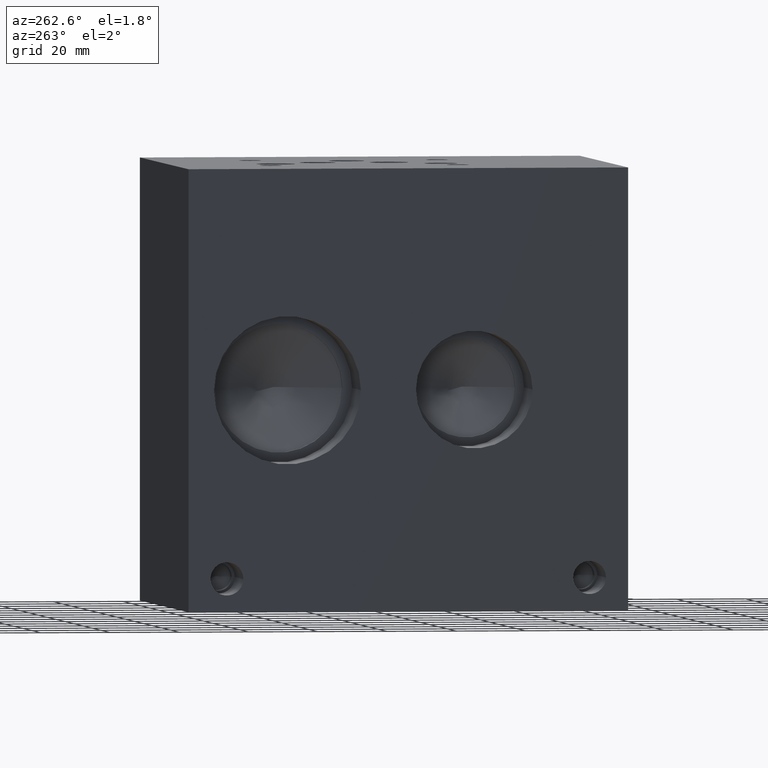
[diagram: clean part render]
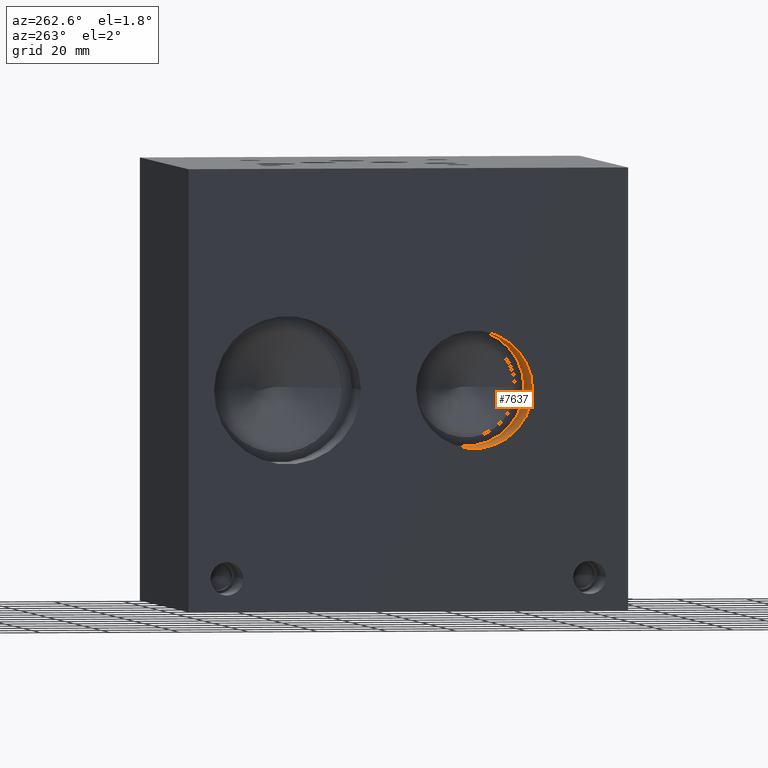
[diagram: same view with one face highlighted and labeled with its STEP entity id]
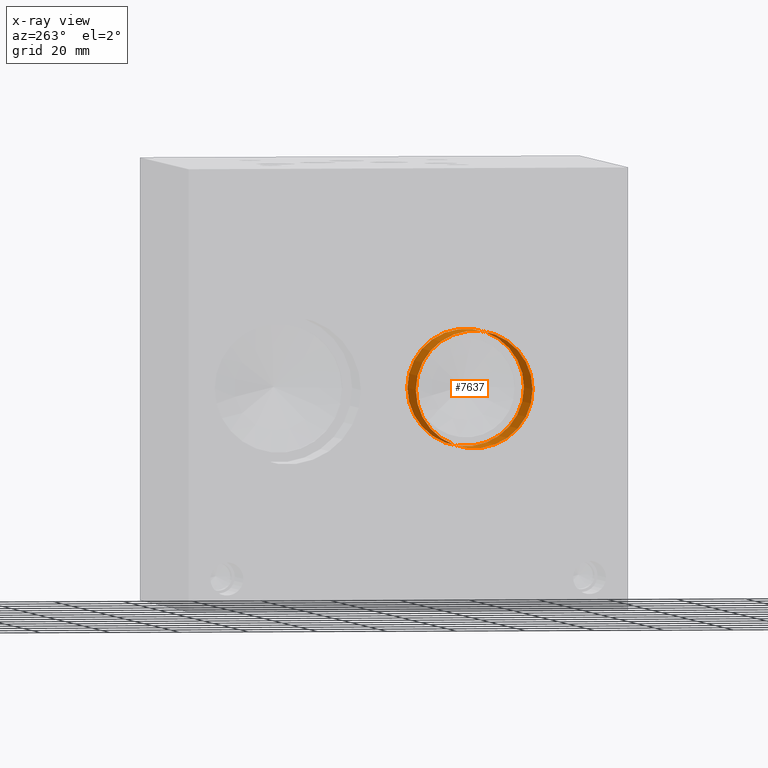
[diagram: x-ray of the same camera — body ghosted, the highlighted face saturated]
A machine part, auxiliary view. The second image highlights one B-rep face of the part: STEP entity #7637.
The next image is the same camera in x-ray: the body ghosted, the highlighted face saturated — about 0% of this face is hidden behind the body in this view.
In plain terms, the highlighted cylindrical surface (bore or boss wall) has radius 16.8529 mm, axis along (-1, 0, 0).
Its self-contained STEP definition (entity closure, byte-faithful):
#39=CYLINDRICAL_SURFACE('',#8040,16.8529);
#158=CIRCLE('',#8037,16.8529);
#159=CIRCLE('',#8038,16.8529);
#161=CIRCLE('',#8041,16.8529);
#162=CIRCLE('',#8042,16.8529);
#854=FACE_OUTER_BOUND('',#1282,.T.);
#1282=EDGE_LOOP('',(#6744,#6745,#6746,#6747,#6748,#6749));
#2046=LINE('',#12948,#2789);
#2789=VECTOR('',#9553,16.8529);
#3686=VERTEX_POINT('',#12937);
#3687=VERTEX_POINT('',#12938);
#3689=VERTEX_POINT('',#12944);
#3690=VERTEX_POINT('',#12945);
#4723=EDGE_CURVE('',#3686,#3687,#158,.T.);
#4724=EDGE_CURVE('',#3687,#3686,#159,.T.);
#4726=EDGE_CURVE('',#3689,#3690,#161,.T.);
#4727=EDGE_CURVE('',#3690,#3689,#162,.T.);
#4728=EDGE_CURVE('',#3690,#3687,#2046,.T.);
#6744=ORIENTED_EDGE('',*,*,#4726,.F.);
#6745=ORIENTED_EDGE('',*,*,#4727,.F.);
#6746=ORIENTED_EDGE('',*,*,#4728,.T.);
#6747=ORIENTED_EDGE('',*,*,#4723,.F.);
#6748=ORIENTED_EDGE('',*,*,#4724,.F.);
#6749=ORIENTED_EDGE('',*,*,#4728,.F.);
#7637=ADVANCED_FACE('',(#854),#39,.F.);
#8037=AXIS2_PLACEMENT_3D('',#12939,#9541,#9542);
#8038=AXIS2_PLACEMENT_3D('',#12940,#9543,#9544);
#8040=AXIS2_PLACEMENT_3D('',#12943,#9547,#9548);
#8041=AXIS2_PLACEMENT_3D('',#12946,#9549,#9550);
#8042=AXIS2_PLACEMENT_3D('',#12947,#9551,#9552);
#9541=DIRECTION('center_axis',(-1.,0.,0.));
#9542=DIRECTION('ref_axis',(0.,1.,0.));
#9543=DIRECTION('center_axis',(-1.,0.,0.));
#9544=DIRECTION('ref_axis',(0.,1.,0.));
#9547=DIRECTION('center_axis',(-1.,0.,0.));
#9548=DIRECTION('ref_axis',(0.,1.,0.));
#9549=DIRECTION('center_axis',(1.,0.,0.));
#9550=DIRECTION('ref_axis',(0.,1.,0.));
#9551=DIRECTION('center_axis',(1.,0.,0.));
#9552=DIRECTION('ref_axis',(0.,1.,0.));
#9553=DIRECTION('',(1.,0.,0.));
#12937=CARTESIAN_POINT('',(18.9992,61.3029,63.5));
#12938=CARTESIAN_POINT('',(18.9992,27.5971,63.5));
#12939=CARTESIAN_POINT('Origin',(18.9992,44.45,63.5));
#12940=CARTESIAN_POINT('Origin',(18.9992,44.45,63.5));
#12943=CARTESIAN_POINT('Origin',(9.4996,44.45,63.5));
#12944=CARTESIAN_POINT('',(0.,61.3029,63.5));
#12945=CARTESIAN_POINT('',(0.,27.5971,63.5));
#12946=CARTESIAN_POINT('Origin',(0.,44.45,63.5));
#12947=CARTESIAN_POINT('Origin',(0.,44.45,63.5));
#12948=CARTESIAN_POINT('',(9.4996,27.5971,63.5));